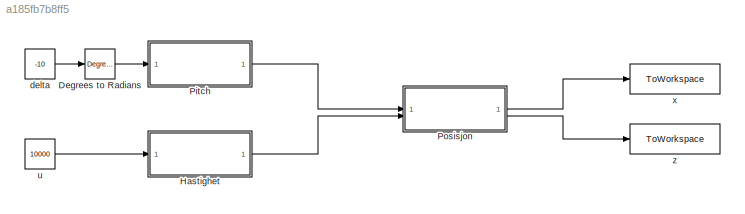
MODEL slx_a185fb7b8ff5
KIND model
CONFIG AbsTol = auto
CONFIG EnableMultiTasking = off
CONFIG FixedStep = auto
CONFIG MaxStep = auto
CONFIG MinStep = auto
CONFIG RelTol = 1e-3
CONFIG SampleTimeConstraint = Unconstrained
CONFIG SolverName = VariableStepAuto
CONFIG StartTime = 0.0
CONFIG StopTime = 15
BLOCK [Reference] Degrees to Radians  REF=simulink_extras/Transformations/Degrees to
Radians
  SourceBlock = simulink_extras/Transformations/Degrees to\nRadians
  SourceType = DegreesToRadians
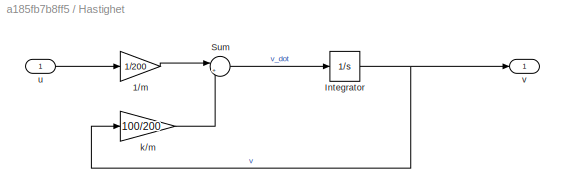
BLOCK [SubSystem] Hastighet
BLOCK [Gain] Hastighet/1//m
  Gain = 1/200
BLOCK [Integrator] Hastighet/Integrator
BLOCK [Sum] Hastighet/Sum
  Inputs = |+-
BLOCK [Gain] Hastighet/k//m
  Gain = 100/200
BLOCK [Inport] Hastighet/u
BLOCK [Outport] Hastighet/v
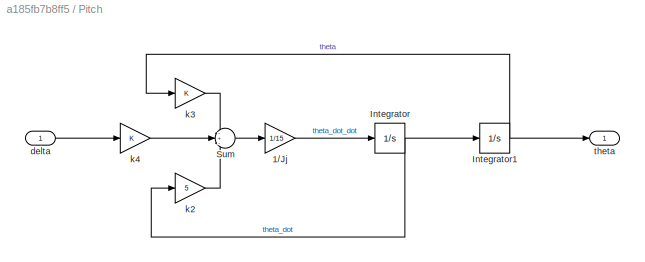
BLOCK [SubSystem] Pitch
BLOCK [Gain] Pitch/1//Jj
  Gain = 1/15
BLOCK [Integrator] Pitch/Integrator
BLOCK [Integrator] Pitch/Integrator1
  InitialCondition = -pi/4
BLOCK [Sum] Pitch/Sum
  Inputs = -+-
BLOCK [Inport] Pitch/delta
BLOCK [Gain] Pitch/k2
  Gain = 5
BLOCK [Gain] Pitch/k3
BLOCK [Gain] Pitch/k4
BLOCK [Outport] Pitch/theta
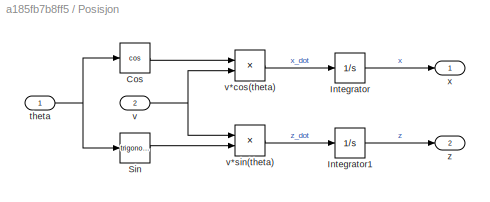
BLOCK [SubSystem] Posisjon
BLOCK [Trigonometry] Posisjon/Cos
  Operator = cos
BLOCK [Integrator] Posisjon/Integrator
BLOCK [Integrator] Posisjon/Integrator1
BLOCK [Trigonometry] Posisjon/Sin
BLOCK [Inport] Posisjon/theta
BLOCK [Inport] Posisjon/v
  Port = 2
BLOCK [Product] Posisjon/v*cos(theta)
BLOCK [Product] Posisjon/v*sin(theta)
BLOCK [Outport] Posisjon/x
BLOCK [Outport] Posisjon/z
  Port = 2
BLOCK [Constant] delta
  Value = -10
BLOCK [Constant] u
  Value = 10000
BLOCK [ToWorkspace] x
  FixptAsFi = on
  MaxDataPoints = inf
  SampleTime = -1
  SaveFormat = Timeseries
  VariableName = x
BLOCK [ToWorkspace] z
  FixptAsFi = on
  MaxDataPoints = inf
  SampleTime = -1
  SaveFormat = Timeseries
  VariableName = z
LINE Degrees to Radians:1 -> Pitch:1
LINE Hastighet/1//m:1 -> Hastighet/Sum:1
NET Hastighet/Integrator:1 -> Hastighet/k//m:1, Hastighet/v:1
LINE Hastighet/Sum:1 -> Hastighet/Integrator:1
LINE Hastighet/k//m:1 -> Hastighet/Sum:2
LINE Hastighet/u:1 -> Hastighet/1//m:1
LINE Hastighet:1 -> Posisjon:2
LINE Pitch/1//Jj:1 -> Pitch/Integrator:1
NET Pitch/Integrator1:1 -> Pitch/k3:1, Pitch/theta:1
NET Pitch/Integrator:1 -> Pitch/Integrator1:1, Pitch/k2:1
LINE Pitch/Sum:1 -> Pitch/1//Jj:1
LINE Pitch/delta:1 -> Pitch/k4:1
LINE Pitch/k2:1 -> Pitch/Sum:3
LINE Pitch/k3:1 -> Pitch/Sum:1
LINE Pitch/k4:1 -> Pitch/Sum:2
LINE Pitch:1 -> Posisjon:1
LINE Posisjon/Cos:1 -> Posisjon/v*cos(theta):1
LINE Posisjon/Integrator1:1 -> Posisjon/z:1
LINE Posisjon/Integrator:1 -> Posisjon/x:1
LINE Posisjon/Sin:1 -> Posisjon/v*sin(theta):2
NET Posisjon/theta:1 -> Posisjon/Cos:1, Posisjon/Sin:1
LINE Posisjon/v*cos(theta):1 -> Posisjon/Integrator:1
LINE Posisjon/v*sin(theta):1 -> Posisjon/Integrator1:1
NET Posisjon/v:1 -> Posisjon/v*cos(theta):2, Posisjon/v*sin(theta):1
LINE Posisjon:1 -> x:1
LINE Posisjon:2 -> z:1
LINE delta:1 -> Degrees to Radians:1
LINE u:1 -> Hastighet:1
note: NET lines group one-source signal fan-out (src -> all destinations, sorted); 1:1 wires keep LINE
